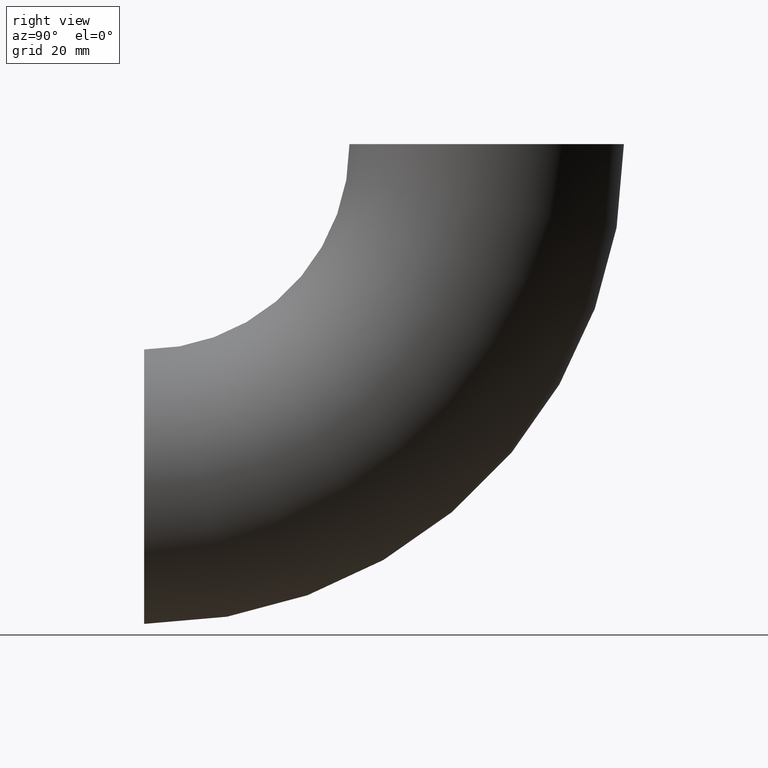
[diagram: clean part render]
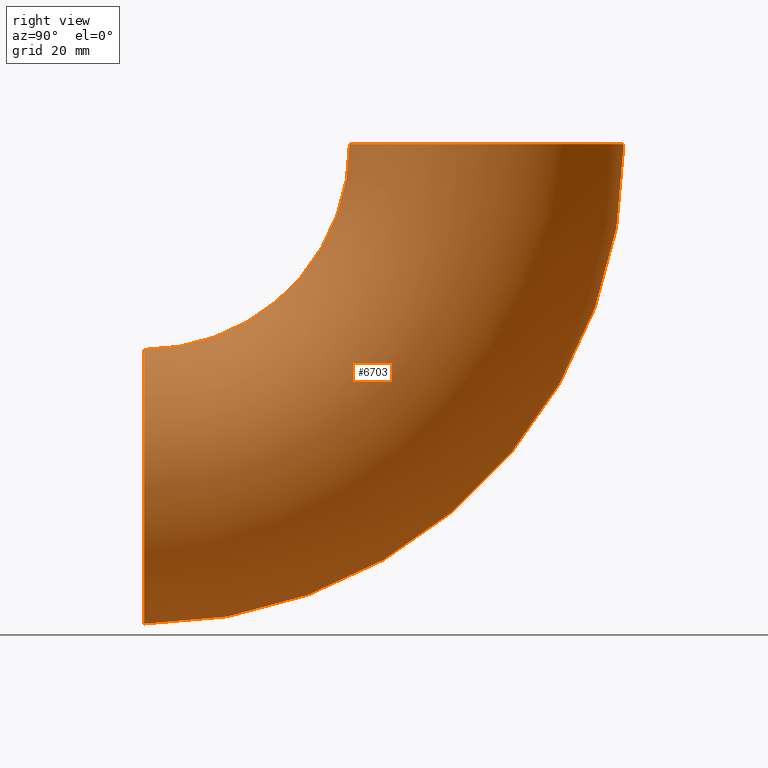
[diagram: same view with one face highlighted and labeled with its STEP entity id]
A machine part, right view. The second image highlights one B-rep face of the part: STEP entity #6703.
In plain terms, the highlighted toroidal blend (fillet) surface has major radius 95 mm and minor (blend) radius 38.05 mm.
Its self-contained STEP definition (entity closure, byte-faithful):
#706 = AXIS2_PLACEMENT_3D ( 'NONE', #3038, #7300, #10074 ) ;
#953 = FACE_OUTER_BOUND ( 'NONE', #5499, .T. ) ;
#1146 = CARTESIAN_POINT ( 'NONE',  ( 0.000000000000000000, 56.95000000000000995, 9.158258489908444919E-15 ) ) ;
#1391 = ORIENTED_EDGE ( 'NONE', *, *, #5092, .T. ) ;
#1540 = CARTESIAN_POINT ( 'NONE',  ( 0.000000000000000000, 0.000000000000000000, -95.00000000000000000 ) ) ;
#3038 = CARTESIAN_POINT ( 'NONE',  ( 0.000000000000000000, 0.000000000000000000, 0.000000000000000000 ) ) ;
#4118 = ORIENTED_EDGE ( 'NONE', *, *, #10208, .F. ) ;
#4207 = CIRCLE ( 'NONE', #10098, 38.04999999999999005 ) ;
#4306 = DIRECTION ( 'NONE',  ( 0.000000000000000000, 0.000000000000000000, 1.000000000000000000 ) ) ;
#5074 = DIRECTION ( 'NONE',  ( 0.000000000000000000, 1.000000000000000000, 0.000000000000000000 ) ) ;
#5092 = EDGE_CURVE ( 'NONE', #6402, #6402, #5970, .T. ) ;
#5336 = TOROIDAL_SURFACE ( 'NONE', #706, 95.00000000000000000, 38.04999999999999005 ) ;
#5499 = EDGE_LOOP ( 'NONE', ( #4118 ) ) ;
#5511 = CARTESIAN_POINT ( 'NONE',  ( 0.000000000000000000, 0.000000000000000000, -56.95000000000000995 ) ) ;
#5970 = CIRCLE ( 'NONE', #9454, 38.04999999999999005 ) ;
#6402 = VERTEX_POINT ( 'NONE', #5511 ) ;
#6703 = ADVANCED_FACE ( 'NONE', ( #953, #9333 ), #5336, .T. ) ;
#7300 = DIRECTION ( 'NONE',  ( -1.000000000000000000, -0.000000000000000000, -0.000000000000000000 ) ) ;
#7679 = CARTESIAN_POINT ( 'NONE',  ( 0.000000000000000000, 95.00000000000000000, 1.527716517192804842E-14 ) ) ;
#9333 = FACE_OUTER_BOUND ( 'NONE', #9464, .T. ) ;
#9454 = AXIS2_PLACEMENT_3D ( 'NONE', #1540, #5074, #4306 ) ;
#9464 = EDGE_LOOP ( 'NONE', ( #1391 ) ) ;
#10074 = DIRECTION ( 'NONE',  ( 0.000000000000000000, 0.000000000000000000, 1.000000000000000000 ) ) ;
#10098 = AXIS2_PLACEMENT_3D ( 'NONE', #7679, #11308, #11224 ) ;
#10208 = EDGE_CURVE ( 'NONE', #11101, #11101, #4207, .T. ) ;
#11101 = VERTEX_POINT ( 'NONE', #1146 ) ;
#11224 = DIRECTION ( 'NONE',  ( 0.000000000000000000, -1.000000000000000000, -1.608122649676636847E-16 ) ) ;
#11308 = DIRECTION ( 'NONE',  ( 0.000000000000000000, -1.608122649676636601E-16, 1.000000000000000000 ) ) ;